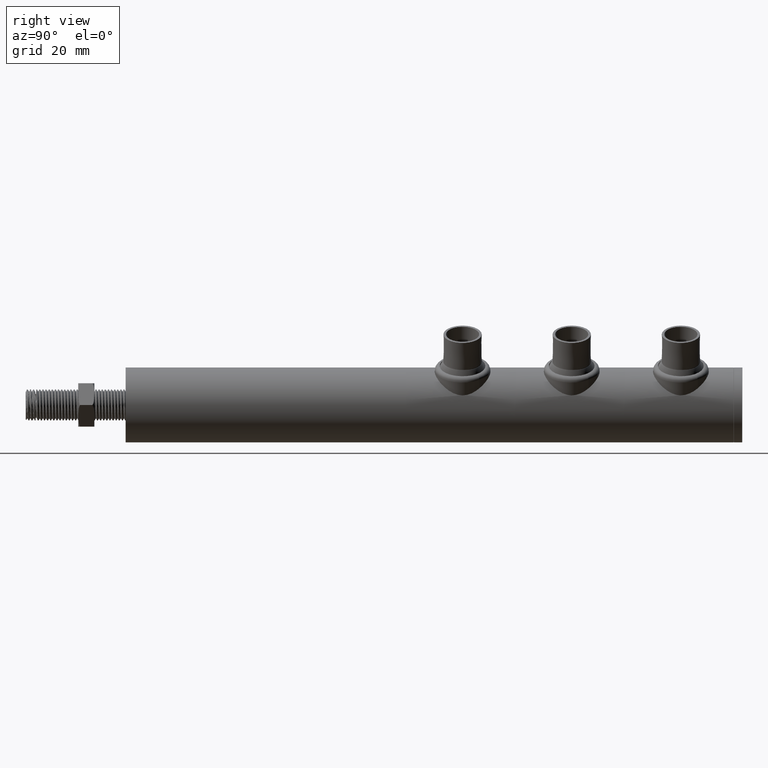
[diagram: clean part render]
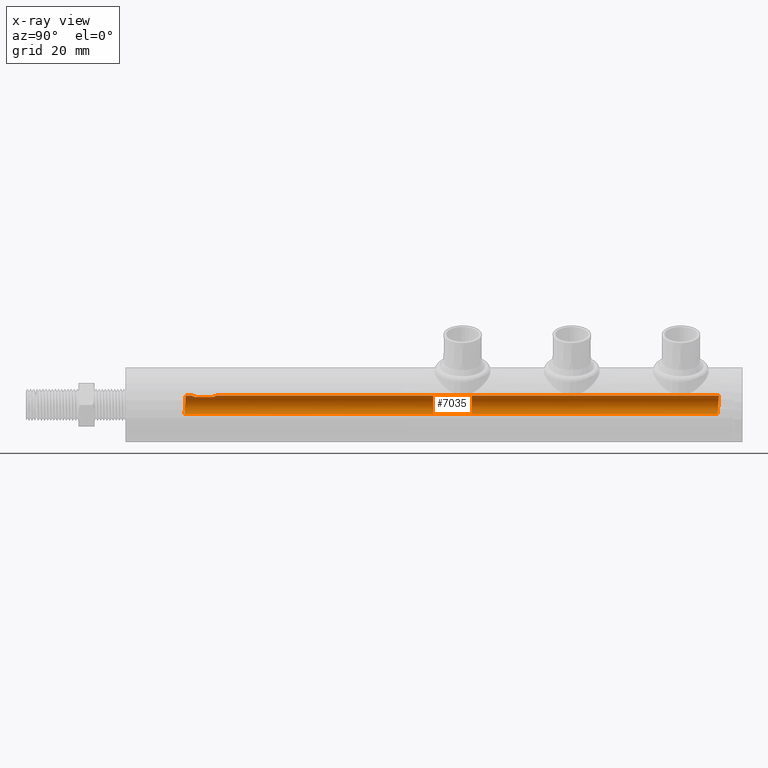
[diagram: x-ray — body ghosted, one internal face saturated and labeled with its STEP entity id]
A machine part, right view, then the same camera in x-ray: the body is ghosted and one INTERNAL B-rep face — a face not visible from any outside direction — is saturated and labeled: STEP entity #7035.
In plain terms, the highlighted cylindrical surface (edge-blend (fillet) strip) has radius 3 mm, axis along (-0, -1, -0).
Its self-contained STEP definition (entity closure, byte-faithful):
#204 = CARTESIAN_POINT ( 'NONE',  ( -1.595042162255220664, 28.48635771396186911, 2.540967437179737054 ) ) ;
#226 = EDGE_CURVE ( 'NONE', #9344, #6309, #5451, .T. ) ;
#344 = DIRECTION ( 'NONE',  ( -0.000000000000000000, -1.000000000000000000, -0.000000000000000000 ) ) ;
#727 = VERTEX_POINT ( 'NONE', #9908 ) ;
#784 = CARTESIAN_POINT ( 'NONE',  ( -1.649999999999984368, 195.0000000000000000, 2.505493963273519586 ) ) ;
#817 = VERTEX_POINT ( 'NONE', #10455 ) ;
#1192 = CARTESIAN_POINT ( 'NONE',  ( -0.4341986869824415729, 21.75439529557332108, 2.970374110340480822 ) ) ;
#1487 = ORIENTED_EDGE ( 'NONE', *, *, #22628, .F. ) ;
#1616 = CARTESIAN_POINT ( 'NONE',  ( -1.562369988783703922, 28.59120027051124424, 2.561504496080911686 ) ) ;
#2342 = LINE ( 'NONE', #3831, #18584 ) ;
#2889 = CARTESIAN_POINT ( 'NONE',  ( -2.999922311897816218, 190.5319595016480889, -0.02158987210846960089 ) ) ;
#3670 = CARTESIAN_POINT ( 'NONE',  ( -1.650000000000000133, 28.16153346387478962, 2.505493963273508928 ) ) ;
#3831 = CARTESIAN_POINT ( 'NONE',  ( 3.673940397442059375E-16, 195.0000000000000000, 2.999999999999999556 ) ) ;
#4526 = VECTOR ( 'NONE', #14733, 1000.000000000000000 ) ;
#4876 = VERTEX_POINT ( 'NONE', #6079 ) ;
#5031 = LINE ( 'NONE', #5438, #15892 ) ;
#5364 = CARTESIAN_POINT ( 'NONE',  ( -1.649999999999984368, 28.04999999999999005, 2.505493963273519586 ) ) ;
#5438 = CARTESIAN_POINT ( 'NONE',  ( 3.673940397442059375E-16, 195.0000000000000000, 2.999999999999999556 ) ) ;
#5451 =( BOUNDED_CURVE ( )  B_SPLINE_CURVE ( 2, ( #18987, #6483, #10176, #13728, #2889, #21024, #10246, #22856, #20791, #20874, #17166 ),
 .UNSPECIFIED., .F., .F. ) 
 B_SPLINE_CURVE_WITH_KNOTS ( ( 3, 2, 2, 2, 2, 3 ),
 ( 0.06269575497404562825, 0.08333333333333325932, 0.1041666666666666297, 0.1250000000000000000, 0.1458333333333332593, 0.1460290883073789847 ),
 .UNSPECIFIED. ) 
 CURVE ( )  GEOMETRIC_REPRESENTATION_ITEM ( )  RATIONAL_B_SPLINE_CURVE ( ( 0.9985829490727865521, 0.9245947785978912981, 1.000000000000000000, 0.9238795325112867385, 1.000000000000000000, 0.9238795325112867385, 1.000000000000000000, 0.9238795325112867385, 1.000000000000000000, 0.9992847539133951074, 0.9985829490727857749 ) ) 
 REPRESENTATION_ITEM ( '' )  );
#5536 = CARTESIAN_POINT ( 'NONE',  ( 3.703681581042821239E-15, 19.32713547930937281, -3.000000000000000000 ) ) ;
#5772 = DIRECTION ( 'NONE',  ( 0.000000000000000000, 0.000000000000000000, -1.000000000000000000 ) ) ;
#6079 = CARTESIAN_POINT ( 'NONE',  ( -2.974476874152522330E-15, 19.82713547930937281, 3.000000000000000000 ) ) ;
#6309 = VERTEX_POINT ( 'NONE', #15407 ) ;
#6483 = CARTESIAN_POINT ( 'NONE',  ( -1.230012291575522942, 190.3450946608937500, -2.999999999999994671 ) ) ;
#6538 = CARTESIAN_POINT ( 'NONE',  ( -0.5404693029832438045, 21.78731247666177140, 2.952662882616049256 ) ) ;
#6874 = CARTESIAN_POINT ( 'NONE',  ( -2.132435148714979523, 19.45292901383152540, -2.110146994056320224 ) ) ;
#7018 = CARTESIAN_POINT ( 'NONE',  ( -0.4411896469204543147, 29.65462922283710157, 2.974416553615269798 ) ) ;
#7035 = ADVANCED_FACE ( 'NONE', ( #20621 ), #17799, .T. ) ;
#7326 = CARTESIAN_POINT ( 'NONE',  ( -1.019909228559560344, 29.36402246027688534, 2.825925320431753374 ) ) ;
#7462 = VERTEX_POINT ( 'NONE', #5364 ) ;
#7975 = CARTESIAN_POINT ( 'NONE',  ( -1.650000000000000799, 23.23834602096785673, 2.505493963273508484 ) ) ;
#8559 = CARTESIAN_POINT ( 'NONE',  ( -1.258383645176031074, 19.39042901383152895, -2.993430553535153305 ) ) ;
#8771 = ORIENTED_EDGE ( 'NONE', *, *, #14180, .T. ) ;
#9085 = CARTESIAN_POINT ( 'NONE',  ( -1.649999999999984368, 28.04999999999999005, 2.505493963273519586 ) ) ;
#9344 = VERTEX_POINT ( 'NONE', #16192 ) ;
#9765 = CARTESIAN_POINT ( 'NONE',  ( -1.562710425398787795, 22.80961914441466831, 2.561303759167593341 ) ) ;
#9908 = CARTESIAN_POINT ( 'NONE',  ( -1.650000000000000133, 23.35000000000000142, 2.505493963273520919 ) ) ;
#10176 = CARTESIAN_POINT ( 'NONE',  ( -2.105999064802920984, 190.4069595016480605, -2.136531754748620671 ) ) ;
#10246 = CARTESIAN_POINT ( 'NONE',  ( -2.136531754748620227, 190.6569595016480889, 2.105999064802921428 ) ) ;
#10272 = CARTESIAN_POINT ( 'NONE',  ( 3.703681581042821239E-15, 19.32713547930937281, -3.000000000000000000 ) ) ;
#10349 = CARTESIAN_POINT ( 'NONE',  ( -2.974476874152522330E-15, 19.82713547930937281, 3.000000000000000444 ) ) ;
#10455 = CARTESIAN_POINT ( 'NONE',  ( 9.504005902250120357E-16, 21.69999999999998863, 3.000000000000004885 ) ) ;
#10505 = CARTESIAN_POINT ( 'NONE',  ( -1.233418601256742075, 19.76496517873230374, 2.999999999999998224 ) ) ;
#10557 = ORIENTED_EDGE ( 'NONE', *, *, #226, .F. ) ;
#10576 = CARTESIAN_POINT ( 'NONE',  ( -1.438215258545130215, 28.88643752229425132, 2.634531823923720317 ) ) ;
#10581 = B_SPLINE_CURVE_WITH_KNOTS ( 'NONE', 3,
 ( #14370, #16008, #7018, #17880, #7326, #21587, #10576, #1616, #204, #19539, #3670, #9085 ),
 .UNSPECIFIED., .F., .F.,
 ( 4, 2, 2, 2, 2, 4 ),
 ( 0.002635987802555105931, 0.003293605239490805022, 0.003951222676426504113, 0.004608840113362202770, 0.004937648831830057303, 0.005266457550297911835 ),
 .UNSPECIFIED. ) ;
#10598 = EDGE_CURVE ( 'NONE', #6309, #17211, #2342, .T. ) ;
#10689 = DIRECTION ( 'NONE',  ( -0.000000000000000000, -1.000000000000000000, -0.000000000000000000 ) ) ;
#11577 = CARTESIAN_POINT ( 'NONE',  ( -1.092712956167670280, 22.10919245276644318, 2.795089837097342489 ) ) ;
#11892 = CARTESIAN_POINT ( 'NONE',  ( -0.8327646423689418764, 21.92157357697391973, 2.883602758433614799 ) ) ;
#12173 = CARTESIAN_POINT ( 'NONE',  ( -2.993430553535153305, 19.64042901383152895, 1.258383645176031074 ) ) ;
#12586 = LINE ( 'NONE', #17928, #4526 ) ;
#12624 = ORIENTED_EDGE ( 'NONE', *, *, #16551, .F. ) ;
#12705 = B_SPLINE_CURVE_WITH_KNOTS ( 'NONE', 3,
 ( #15118, #7975, #18887, #20680, #9765, #22507, #22349, #11577, #13379, #11892, #17449, #6538, #1192, #19201, #22663, #22834 ),
 .UNSPECIFIED., .F., .F.,
 ( 4, 2, 2, 2, 2, 2, 2, 4 ),
 ( 2.168404344971008868E-19, 0.0003294984753193872656, 0.0006589969506387743144, 0.001317993901277547978, 0.001647492376596938280, 0.001976990851916328798, 0.002306489327235718666, 0.002635987802555109401 ),
 .UNSPECIFIED. ) ;
#13263 = ORIENTED_EDGE ( 'NONE', *, *, #14316, .F. ) ;
#13379 = CARTESIAN_POINT ( 'NONE',  ( -1.009907013126823960, 22.04080680554158533, 2.826437624088506073 ) ) ;
#13728 = CARTESIAN_POINT ( 'NONE',  ( -2.990979494060587385, 190.4694595016480889, -1.264198379762194069 ) ) ;
#13761 = CARTESIAN_POINT ( 'NONE',  ( -3.006486652253926195, 19.51542901383152540, -1.226863434577486478 ) ) ;
#14015 = EDGE_LOOP ( 'NONE', ( #15075, #10557, #8771, #18553, #16035, #13263, #12624, #1487 ) ) ;
#14180 = EDGE_CURVE ( 'NONE', #9344, #21302, #12586, .T. ) ;
#14316 = EDGE_CURVE ( 'NONE', #727, #817, #12705, .T. ) ;
#14370 = CARTESIAN_POINT ( 'NONE',  ( -2.156125882753424863E-16, 29.70000000000000639, 3.000000000000004885 ) ) ;
#14733 = DIRECTION ( 'NONE',  ( -0.000000000000000000, -1.000000000000000000, -0.000000000000000000 ) ) ;
#14754 = VECTOR ( 'NONE', #20578, 1000.000000000000000 ) ;
#15075 = ORIENTED_EDGE ( 'NONE', *, *, #10598, .F. ) ;
#15118 = CARTESIAN_POINT ( 'NONE',  ( -1.650000000000000133, 23.35000000000000142, 2.505493963273520919 ) ) ;
#15407 = CARTESIAN_POINT ( 'NONE',  ( 5.788355226203675643E-15, 190.7830470068597037, 3.000000000000000000 ) ) ;
#15561 = CARTESIAN_POINT ( 'NONE',  ( -2.999958602894539528, 19.57792901383152540, 0.01576010529927228052 ) ) ;
#15783 = CARTESIAN_POINT ( 'NONE',  ( -2.110146994056319780, 19.70292901383152895, 2.132435148714979967 ) ) ;
#15892 = VECTOR ( 'NONE', #10689, 1000.000000000000000 ) ;
#16008 = CARTESIAN_POINT ( 'NONE',  ( -0.2208609670285066329, 29.70000000000000639, 3.000000000000003553 ) ) ;
#16035 = ORIENTED_EDGE ( 'NONE', *, *, #16350, .F. ) ;
#16192 = CARTESIAN_POINT ( 'NONE',  ( -5.460936539610091868E-15, 190.2830470068597037, -3.000000000000000444 ) ) ;
#16350 = EDGE_CURVE ( 'NONE', #817, #4876, #5031, .T. ) ;
#16551 = EDGE_CURVE ( 'NONE', #7462, #727, #21809, .T. ) ;
#16694 = DIRECTION ( 'NONE',  ( -0.000000000000000000, -1.000000000000000000, -0.000000000000000000 ) ) ;
#17166 = CARTESIAN_POINT ( 'NONE',  ( 5.788355226203675643E-15, 190.7830470068597037, 3.000000000000000444 ) ) ;
#17211 = VERTEX_POINT ( 'NONE', #19792 ) ;
#17449 = CARTESIAN_POINT ( 'NONE',  ( -0.7390203614713017899, 21.87082851961140051, 2.909325363581139801 ) ) ;
#17799 = CYLINDRICAL_SURFACE ( 'NONE', #22459, 2.999999999999999556 ) ;
#17880 = CARTESIAN_POINT ( 'NONE',  ( -0.8406601687355240715, 29.48623595834185451, 2.887056047199619613 ) ) ;
#17928 = CARTESIAN_POINT ( 'NONE',  ( 0.000000000000000000, 195.0000000000000000, -2.999999999999999556 ) ) ;
#18553 = ORIENTED_EDGE ( 'NONE', *, *, #22555, .F. ) ;
#18584 = VECTOR ( 'NONE', #16694, 1000.000000000000000 ) ;
#18887 = CARTESIAN_POINT ( 'NONE',  ( -1.638790841227721007, 23.12915542268328295, 2.512971749743440064 ) ) ;
#18987 = CARTESIAN_POINT ( 'NONE',  ( -5.460936539610091868E-15, 190.2830470068597037, -3.000000000000000444 ) ) ;
#19201 = CARTESIAN_POINT ( 'NONE',  ( -0.2196059187071313645, 21.71101979480085831, 2.993897809817007705 ) ) ;
#19397 = CARTESIAN_POINT ( 'NONE',  ( -0.007880107018569939767, 19.32753267505575323, -3.000000000000000444 ) ) ;
#19539 = CARTESIAN_POINT ( 'NONE',  ( -1.638810991931911598, 28.27105674979286221, 2.512961111697257888 ) ) ;
#19792 = CARTESIAN_POINT ( 'NONE',  ( -2.156125882753424863E-16, 29.70000000000000639, 3.000000000000004885 ) ) ;
#20578 = DIRECTION ( 'NONE',  ( -0.000000000000000000, -1.000000000000000000, -0.000000000000000000 ) ) ;
#20621 = FACE_OUTER_BOUND ( 'NONE', #14015, .T. ) ;
#20680 = CARTESIAN_POINT ( 'NONE',  ( -1.595433816197046273, 22.91526020798988483, 2.540719066413168026 ) ) ;
#20791 = CARTESIAN_POINT ( 'NONE',  ( -0.02158987210847002070, 190.7819595016481173, 2.999922311897816662 ) ) ;
#20874 = CARTESIAN_POINT ( 'NONE',  ( -0.01079507582904860527, 190.7825024520329578, 3.000000000000000000 ) ) ;
#21024 = CARTESIAN_POINT ( 'NONE',  ( -3.008865129735045496, 190.5944595016480889, 1.221018635545254138 ) ) ;
#21302 = VERTEX_POINT ( 'NONE', #5536 ) ;
#21587 = CARTESIAN_POINT ( 'NONE',  ( -1.317318598048539346, 29.06564835048775919, 2.700137119183708023 ) ) ;
#21809 = LINE ( 'NONE', #784, #14754 ) ;
#21974 = CARTESIAN_POINT ( 'NONE',  ( 0.000000000000000000, 195.0000000000000000, 0.000000000000000000 ) ) ;
#22349 = CARTESIAN_POINT ( 'NONE',  ( -1.316356622127446530, 22.33304123054322332, 2.700629639818716843 ) ) ;
#22459 = AXIS2_PLACEMENT_3D ( 'NONE', #21974, #344, #5772 ) ;
#22507 = CARTESIAN_POINT ( 'NONE',  ( -1.437602559996822071, 22.51208577382683274, 2.634893197265312015 ) ) ;
#22555 = EDGE_CURVE ( 'NONE', #4876, #21302, #22576, .T. ) ;
#22576 =( BOUNDED_CURVE ( )  B_SPLINE_CURVE ( 2, ( #10349, #10505, #15783, #12173, #15561, #13761, #6874, #8559, #22883, #19397, #10272 ),
 .UNSPECIFIED., .F., .F. ) 
 B_SPLINE_CURVE_WITH_KNOTS ( ( 3, 2, 2, 2, 2, 3 ),
 ( 0.01789797809279048205, 0.02380952380952383596, 0.02976190476190476719, 0.03571428571428569843, 0.04166666666666662966, 0.04170750190231432147 ),
 .UNSPECIFIED. ) 
 CURVE ( )  GEOMETRIC_REPRESENTATION_ITEM ( )  RATIONAL_B_SPLINE_CURVE ( ( 0.9989627435966144109, 0.9244017432455090555, 1.000000000000000000, 0.9238795325112867385, 1.000000000000000000, 0.9238795325112867385, 1.000000000000000000, 0.9238795325112867385, 1.000000000000000000, 0.9994777892657775720, 0.9989627435966141888 ) ) 
 REPRESENTATION_ITEM ( '' )  );
#22628 = EDGE_CURVE ( 'NONE', #17211, #7462, #10581, .T. ) ;
#22663 = CARTESIAN_POINT ( 'NONE',  ( -0.1106621385110454769, 21.69999999999998508, 3.000000000000003109 ) ) ;
#22834 = CARTESIAN_POINT ( 'NONE',  ( 9.504005902250120357E-16, 21.69999999999998863, 3.000000000000004885 ) ) ;
#22856 = CARTESIAN_POINT ( 'NONE',  ( -1.264198379762194069, 190.7194595016480605, 2.990979494060587385 ) ) ;
#22883 = CARTESIAN_POINT ( 'NONE',  ( -0.01576010529927249562, 19.32792901383152540, -2.999958602894539528 ) ) ;